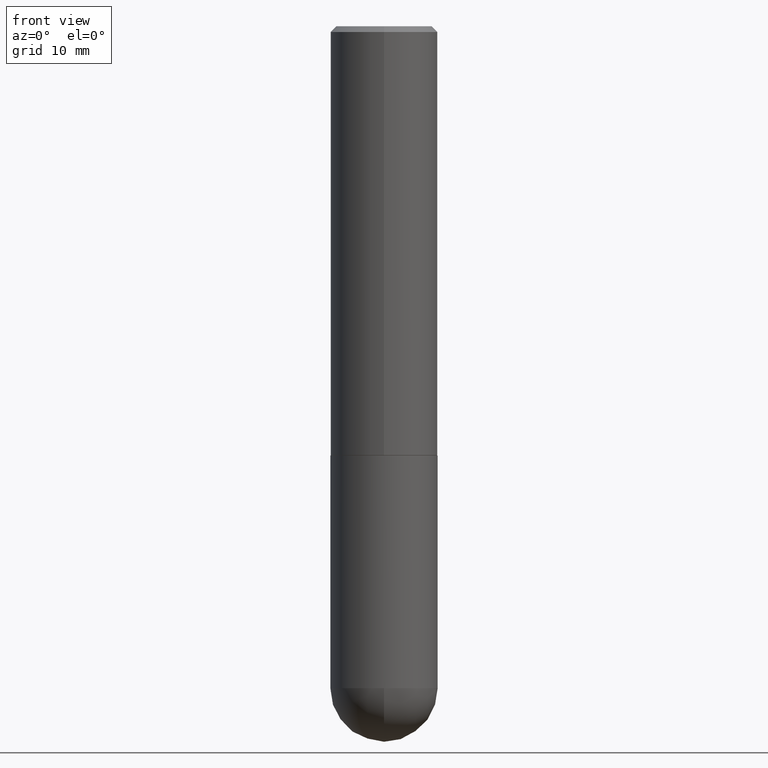
[diagram: clean part render]
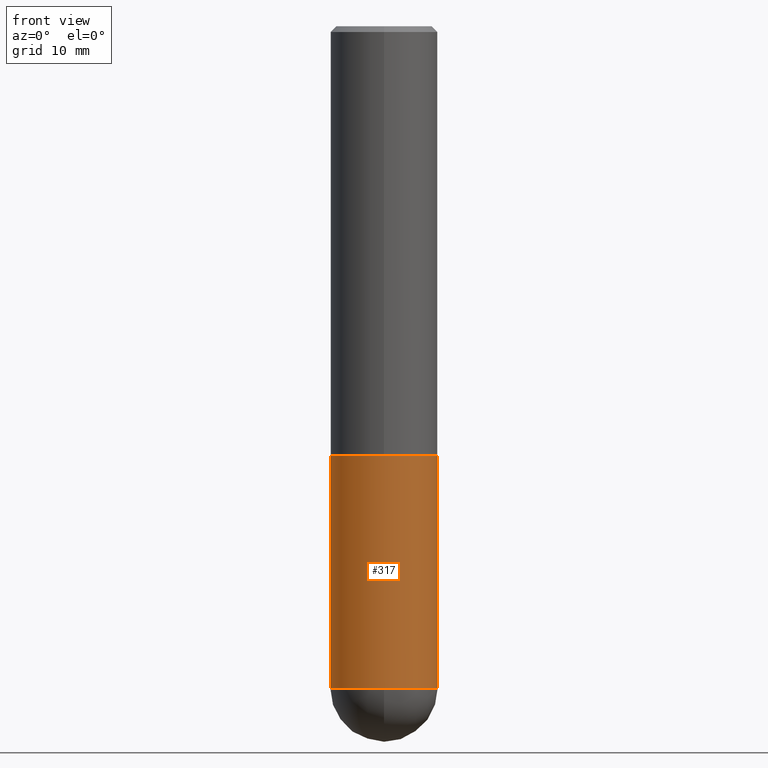
[diagram: same view with one face highlighted and labeled with its STEP entity id]
A machine part, front view. The second image highlights one B-rep face of the part: STEP entity #317.
In plain terms, the highlighted cylindrical surface (partial cylindrical patch) has radius 4.7625 mm, axis along (-0, 0, 1).
Its self-contained STEP definition (entity closure, byte-faithful):
#7 = EDGE_CURVE ( 'NONE', #330, #138, #229, .T. ) ;
#21 = DIRECTION ( 'NONE',  ( -2.445468806185136597E-29, 3.491481338843145583E-15, 1.000000000000000000 ) ) ;
#22 = CARTESIAN_POINT ( 'NONE',  ( 0.1875000000000000278, -6.546527510330893974E-15, -1.500000000000000222 ) ) ;
#30 = DIRECTION ( 'NONE',  ( 1.000000000000000000, -6.982962677686266711E-15, 0.000000000000000000 ) ) ;
#33 = LINE ( 'NONE', #239, #259 ) ;
#42 = DIRECTION ( 'NONE',  ( -2.445468806185136877E-29, 3.491481338843145188E-15, 1.000000000000000000 ) ) ;
#43 = EDGE_CURVE ( 'NONE', #191, #116, #33, .T. ) ;
#45 = CIRCLE ( 'NONE', #253, 0.1875000000000000278 ) ;
#48 = CYLINDRICAL_SURFACE ( 'NONE', #347, 0.1875000000000000555 ) ;
#103 = AXIS2_PLACEMENT_3D ( 'NONE', #112, #21, #186 ) ;
#112 = CARTESIAN_POINT ( 'NONE',  ( 5.655146614303128380E-29, -8.074050596074775072E-15, -2.312500000000000000 ) ) ;
#115 = FACE_OUTER_BOUND ( 'NONE', #171, .T. ) ;
#116 = VERTEX_POINT ( 'NONE', #22 ) ;
#123 = ORIENTED_EDGE ( 'NONE', *, *, #7, .F. ) ;
#138 = VERTEX_POINT ( 'NONE', #252 ) ;
#171 = EDGE_LOOP ( 'NONE', ( #123, #274, #236, #384, #300 ) ) ;
#180 = CIRCLE ( 'NONE', #282, 0.1875000000000000555 ) ;
#186 = DIRECTION ( 'NONE',  ( 1.000000000000000000, -6.982962677686270655E-15, 0.000000000000000000 ) ) ;
#187 = DIRECTION ( 'NONE',  ( 1.000000000000000000, -6.982962677686265922E-15, 4.876176775795935793E-29 ) ) ;
#191 = VERTEX_POINT ( 'NONE', #322 ) ;
#202 = VERTEX_POINT ( 'NONE', #334 ) ;
#203 = EDGE_CURVE ( 'NONE', #138, #116, #45, .T. ) ;
#218 = DIRECTION ( 'NONE',  ( -2.445468806185136597E-29, 3.491481338843145583E-15, 1.000000000000000000 ) ) ;
#225 = DIRECTION ( 'NONE',  ( -2.445468806185136597E-29, 3.491481338843145583E-15, 1.000000000000000000 ) ) ;
#229 = LINE ( 'NONE', #298, #301 ) ;
#231 = DIRECTION ( 'NONE',  ( -2.445468806185136597E-29, 3.491481338843145583E-15, 1.000000000000000000 ) ) ;
#236 = ORIENTED_EDGE ( 'NONE', *, *, #365, .T. ) ;
#239 = CARTESIAN_POINT ( 'NONE',  ( 0.1875000000000000555, -1.309305502066175205E-15, 9.142831454617382414E-30 ) ) ;
#252 = CARTESIAN_POINT ( 'NONE',  ( -0.1875000000000000278, -5.323368672619557593E-15, -1.500000000000000222 ) ) ;
#253 = AXIS2_PLACEMENT_3D ( 'NONE', #329, #231, #30 ) ;
#259 = VECTOR ( 'NONE', #296, 39.37007874015748143 ) ;
#274 = ORIENTED_EDGE ( 'NONE', *, *, #310, .T. ) ;
#282 = AXIS2_PLACEMENT_3D ( 'NONE', #366, #225, #353 ) ;
#295 = CIRCLE ( 'NONE', #103, 0.1875000000000000555 ) ;
#296 = DIRECTION ( 'NONE',  ( -2.445468806185136877E-29, 3.491481338843145188E-15, 1.000000000000000000 ) ) ;
#298 = CARTESIAN_POINT ( 'NONE',  ( -0.1875000000000000555, 1.332267629550188243E-15, -9.223003294227950793E-30 ) ) ;
#300 = ORIENTED_EDGE ( 'NONE', *, *, #203, .F. ) ;
#301 = VECTOR ( 'NONE', #42, 39.37007874015748143 ) ;
#310 = EDGE_CURVE ( 'NONE', #330, #202, #180, .T. ) ;
#317 = ADVANCED_FACE ( 'NONE', ( #115 ), #48, .T. ) ;
#322 = CARTESIAN_POINT ( 'NONE',  ( 0.1875000000000000555, -7.964941804235924394E-15, -2.312500000000000000 ) ) ;
#329 = CARTESIAN_POINT ( 'NONE',  ( 3.668203209277704895E-29, -5.237222008264718177E-15, -1.500000000000000222 ) ) ;
#330 = VERTEX_POINT ( 'NONE', #343 ) ;
#334 = CARTESIAN_POINT ( 'NONE',  ( -1.332267629550134009E-15, -0.1875000000000084932, -2.312499999999999556 ) ) ;
#343 = CARTESIAN_POINT ( 'NONE',  ( -0.1875000000000000555, -5.323368672619559170E-15, -2.312500000000000000 ) ) ;
#347 = AXIS2_PLACEMENT_3D ( 'NONE', #408, #218, #187 ) ;
#353 = DIRECTION ( 'NONE',  ( 1.000000000000000000, -6.982962677686270655E-15, 0.000000000000000000 ) ) ;
#365 = EDGE_CURVE ( 'NONE', #202, #191, #295, .T. ) ;
#366 = CARTESIAN_POINT ( 'NONE',  ( 5.655146614303128380E-29, -8.074050596074775072E-15, -2.312500000000000000 ) ) ;
#384 = ORIENTED_EDGE ( 'NONE', *, *, #43, .T. ) ;
#408 = CARTESIAN_POINT ( 'NONE',  ( 0.000000000000000000, 0.000000000000000000, 0.000000000000000000 ) ) ;